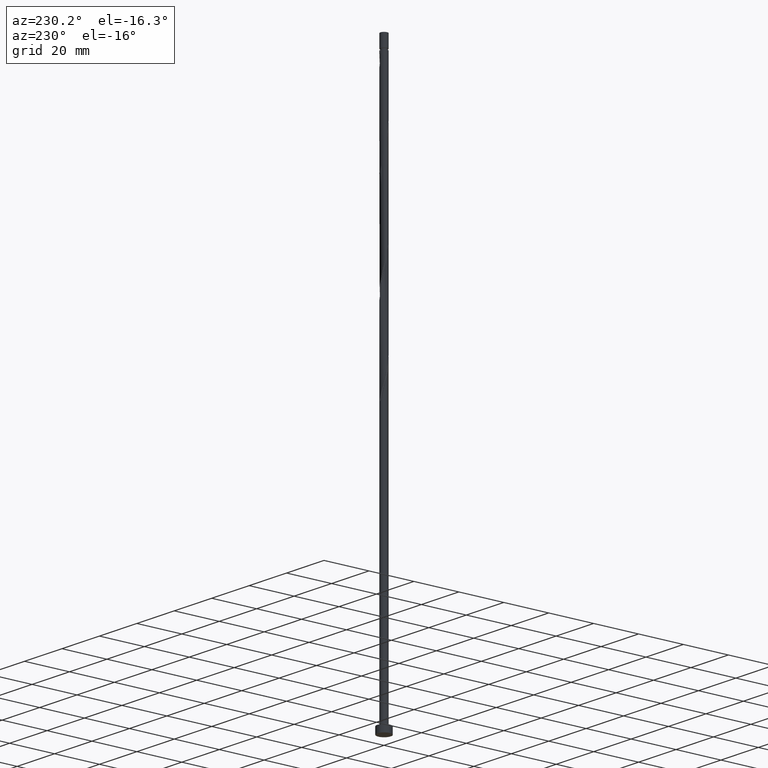
[diagram: clean part render]
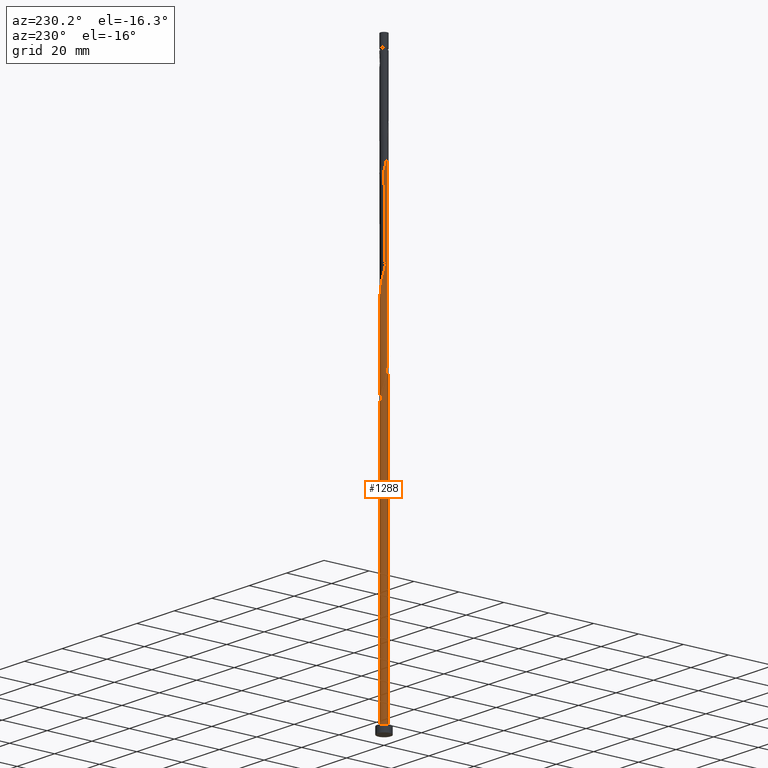
[diagram: same view with one face highlighted and labeled with its STEP entity id]
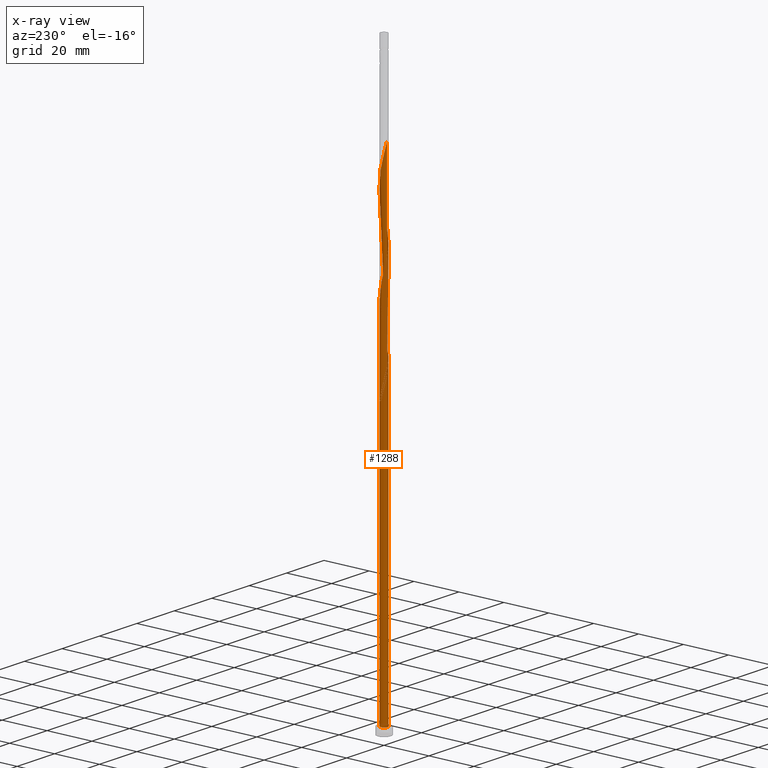
[diagram: x-ray of the same camera — body ghosted, the highlighted face saturated]
A machine part, auxiliary view. The second image highlights one B-rep face of the part: STEP entity #1288.
The next image is the same camera in x-ray: the body ghosted, the highlighted face saturated — about 0% of this face is hidden behind the body in this view.
In plain terms, the highlighted cylindrical surface (bore or boss wall) has radius 1.6 mm, axis along (-0, -0, -1).
Its self-contained STEP definition (entity closure, byte-faithful):
#8 = CARTESIAN_POINT ( 'NONE',  ( 1.594945909006418638, 0.1270730000578370045, 190.8876527196082975 ) ) ;
#9 = CIRCLE ( 'NONE', #662, 1.600000000000000089 ) ;
#16 = CARTESIAN_POINT ( 'NONE',  ( -0.8014535150113202278, -1.384800441679597371, 176.4645757965313635 ) ) ;
#41 = CARTESIAN_POINT ( 'NONE',  ( -1.471308233388665565, 0.6286907684726513734, 208.5158578478134359 ) ) ;
#56 = CARTESIAN_POINT ( 'NONE',  ( 0.6333082990155209924, 1.482114516932723891, 198.0991911811467503 ) ) ;
#58 = CARTESIAN_POINT ( 'NONE',  ( 0.3183959798741202718, -1.568000000000002281, 139.6056014375570840 ) ) ;
#68 = CARTESIAN_POINT ( 'NONE',  ( -1.394971353447189033, 0.8073399321019437691, 124.3812424631980491 ) ) ;
#85 = CIRCLE ( 'NONE', #294, 1.600000000000000089 ) ;
#89 =( BOUNDED_CURVE ( )  B_SPLINE_CURVE ( 2, ( #1074, #1307, #1718, #1061, #1331, #407, #1044, #939, #414, #1474, #963, #1325, #1109, #1163, #1692, #1034, #58, #1186, #504, #626, #1039, #255, #1448, #366, #1599, #1073, #792, #1330, #915, #1582, #378, #104, #262, #1337, #665, #1082, #130, #533, #1573, #644, #1060, #398, #1196, #764, #926, #1438, #1202, #1313, #1219, #946, #231, #248, #635, #524, #1708, #906, #774, #1210, #1590, #1050, #1470, #1698, #16, #1347, #783, #802, #494, #1565, #357, #239, #1322, #116, #1431, #1717, #389, #935, #1460, #513, #124, #653, #8, #1124, #307, #1093, #300, #1259, #273, #974, #281, #56, #712, #575, #1508, #1491, #585, #1252, #1379, #1134, #544, #683, #693, #1234, #41, #835, #702, #959, #817 ),
 .UNSPECIFIED., .F., .T. ) 
 B_SPLINE_CURVE_WITH_KNOTS ( ( 3, 2, 2, 2, 2, 2, 2, 2, 2, 2, 2, 2, 2, 2, 2, 2, 2, 2, 2, 2, 2, 2, 2, 2, 2, 2, 2, 2, 2, 2, 2, 2, 2, 2, 2, 2, 2, 2, 2, 2, 2, 2, 2, 2, 2, 2, 2, 2, 2, 2, 2, 2, 2, 3 ),
 ( 0.05452716259738341759, 0.05769230769230770939, 0.06730769230769229061, 0.07692307692307687184, 0.08653846153846156408, 0.09615384615384614531, 0.1057692307692307265, 0.1153846153846154188, 0.1250000000000000000, 0.1346153846153845812, 0.1442307692307692735, 0.1538461538461538547, 0.1634615384615384359, 0.1730769230769231282, 0.1826923076923077094, 0.1923076923076922906, 0.2019230769230768718, 0.2115384615384615641, 0.2211538461538461453, 0.2307692307692307265, 0.2403846153846154188, 0.2500000000000000000, 0.2596153846153845812, 0.2692307692307692735, 0.2788461538461538547, 0.2884615384615384359, 0.2980769230769231282, 0.3076923076923077094, 0.3173076923076922906, 0.3269230769230768718, 0.3365384615384615641, 0.3461538461538461453, 0.3557692307692307265, 0.3653846153846154188, 0.3750000000000000000, 0.3846153846153845812, 0.3942307692307692735, 0.4038461538461538547, 0.4134615384615384359, 0.4230769230769231282, 0.4326923076923077094, 0.4423076923076922906, 0.4519230769230768718, 0.4615384615384615641, 0.4711538461538461453, 0.4807692307692307265, 0.4903846153846154188, 0.5000000000000000000, 0.5096153846153845812, 0.5192307692307691624, 0.5288461538461538547, 0.5384615384615384359, 0.5480769230769231282, 0.5545271625973835494 ),
 .UNSPECIFIED. ) 
 CURVE ( )  GEOMETRIC_REPRESENTATION_ITEM ( )  RATIONAL_B_SPLINE_CURVE ( ( 0.9061636035683144907, 0.9069090390691032511, 0.9090909090909597978, 0.9024626128164631167, 0.9090909090909597978, 0.9024626128164631167, 0.9090909090909597978, 0.9024626128164631167, 0.9090909090909597978, 0.9024626128164631167, 0.9090909090909597978, 0.9024626128164631167, 0.9090909090909597978, 0.9024626128164631167, 0.9090909090909597978, 0.9024626128164631167, 0.9090909090909597978, 0.9024626128164631167, 0.9090909090909597978, 0.9024626128164631167, 0.9090909090909597978, 0.9024626128164631167, 0.9090909090909597978, 0.9024626128164631167, 0.9090909090909597978, 0.9024626128164631167, 0.9090909090909597978, 0.9024626128164631167, 0.9090909090909597978, 0.9024626128164631167, 0.9090909090909597978, 0.9024626128164631167, 0.9090909090909597978, 0.9024626128164631167, 0.9090909090909597978, 0.9024626128164631167, 0.9090909090909597978, 0.9024626128164631167, 0.9090909090909597978, 0.9024626128164631167, 0.9090909090909597978, 0.9024626128164631167, 0.9090909090909597978, 0.9024626128164631167, 0.9090909090909597978, 0.9024626128164631167, 0.9090909090909597978, 0.9024626128164631167, 0.9090909090909597978, 0.9024626128164631167, 0.9090909090909597978, 0.9024626128164631167, 0.9090909090909597978, 0.9024626128164631167, 0.9090909090909597978, 0.9024626128164631167, 0.9090909090909597978, 0.9024626128164631167, 0.9090909090909597978, 0.9024626128164631167, 0.9090909090909597978, 0.9024626128164631167, 0.9090909090909597978, 0.9024626128164631167, 0.9090909090909597978, 0.9024626128164631167, 0.9090909090909597978, 0.9024626128164631167, 0.9090909090909597978, 0.9024626128164631167, 0.9090909090909597978, 0.9024626128164631167, 0.9090909090909597978, 0.9024626128164631167, 0.9090909090909597978, 0.9024626128164631167, 0.9090909090909597978, 0.9024626128164631167, 0.9090909090909597978, 0.9024626128164631167, 0.9090909090909597978, 0.9024626128164631167, 0.9090909090909597978, 0.9024626128164631167, 0.9090909090909597978, 0.9024626128164631167, 0.9090909090909597978, 0.9024626128164631167, 0.9090909090909597978, 0.9024626128164631167, 0.9090909090909597978, 0.9024626128164631167, 0.9090909090909597978, 0.9024626128164631167, 0.9090909090909597978, 0.9024626128164631167, 0.9090909090909597978, 0.9024626128164631167, 0.9090909090909597978, 0.9024626128164631167, 0.9090909090909597978, 0.9024626128164631167, 0.9090909090909597978, 0.9024626128164631167, 0.9090909090909597978, 0.9046444828383195524, 0.9061636035683147128 ) ) 
 REPRESENTATION_ITEM ( '' )  );
#104 = CARTESIAN_POINT ( 'NONE',  ( 1.456861787004775088, 0.6894175632154343480, 151.6248322067878291 ) ) ;
#116 = CARTESIAN_POINT ( 'NONE',  ( 0.8599962163594109255, -1.363139519914286835, 183.6761142580698731 ) ) ;
#124 = CARTESIAN_POINT ( 'NONE',  ( 1.579010239008792116, -0.2583150500946562733, 189.2850886170441811 ) ) ;
#130 = CARTESIAN_POINT ( 'NONE',  ( 0.8014535150113204498, 1.384800441679597371, 155.6312424631981060 ) ) ;
#135 = CARTESIAN_POINT ( 'NONE',  ( -0.6333082990155192160, 1.482114516932720782, 122.7786783606339043 ) ) ;
#139 = ORIENTED_EDGE ( 'NONE', *, *, #1045, .T. ) ;
#143 = CARTESIAN_POINT ( 'NONE',  ( -1.594945909006415086, 0.1270730000578381147, 129.9902168221723855 ) ) ;
#154 = CARTESIAN_POINT ( 'NONE',  ( -0.06610299024276355961, 1.598633915154112017, 120.3748322067877581 ) ) ;
#162 = EDGE_CURVE ( 'NONE', #1218, #976, #1705, .T. ) ;
#163 = CARTESIAN_POINT ( 'NONE',  ( -1.518189120165080785, 0.5050760293385311295, 128.3876527196082691 ) ) ;
#190 = CARTESIAN_POINT ( 'NONE',  ( -1.600000000000002975, -1.876970285927413828E-15, 127.8610128949984812 ) ) ;
#191 = CARTESIAN_POINT ( 'NONE',  ( 0.000000000000000000, 0.000000000000000000, 250.0000000000000000 ) ) ;
#196 = CARTESIAN_POINT ( 'NONE',  ( -1.161226929016445197, 1.117718597068014574, 122.7786783606339327 ) ) ;
#203 = CARTESIAN_POINT ( 'NONE',  ( -0.5087856495666251977, 1.529339728673691612, 119.5735501555057425 ) ) ;
#229 = EDGE_CURVE ( 'NONE', #1417, #522, #1119, .T. ) ;
#231 = CARTESIAN_POINT ( 'NONE',  ( -1.471308233388665565, 0.6286907684726513734, 166.8491911811467787 ) ) ;
#239 = CARTESIAN_POINT ( 'NONE',  ( 0.5087856495666247536, -1.529339728673691834, 182.0735501555057567 ) ) ;
#243 = CARTESIAN_POINT ( 'NONE',  ( 0.3183959798741204383, 1.567999999999999616, 118.7722681042236701 ) ) ;
#247 = VERTEX_POINT ( 'NONE', #1229 ) ;
#248 = CARTESIAN_POINT ( 'NONE',  ( -1.547645113330142097, 0.4500416048433588667, 167.6504732324288227 ) ) ;
#255 = CARTESIAN_POINT ( 'NONE',  ( 1.161226929016444753, -1.117718597068014796, 143.6120116939672755 ) ) ;
#262 = CARTESIAN_POINT ( 'NONE',  ( 1.353200698052673401, 0.8537258756707375440, 152.4261142580699016 ) ) ;
#273 = CARTESIAN_POINT ( 'NONE',  ( 1.109569170053845477, 1.152760277276255740, 195.6953450273005899 ) ) ;
#281 = CARTESIAN_POINT ( 'NONE',  ( 0.8014535150113204498, 1.384800441679597371, 197.2979091298647631 ) ) ;
#294 = AXIS2_PLACEMENT_3D ( 'NONE', #820, #561, #295 ) ;
#295 = DIRECTION ( 'NONE',  ( 1.000000000000000000, 0.000000000000000000, 0.000000000000000000 ) ) ;
#296 = CARTESIAN_POINT ( 'NONE',  ( -0.9695987310071165766, 1.287486366426468853, 124.3812424631980207 ) ) ;
#300 = CARTESIAN_POINT ( 'NONE',  ( 1.353200698052673401, 0.8537258756707375440, 194.0927809247365019 ) ) ;
#307 = CARTESIAN_POINT ( 'NONE',  ( 1.518189120165084338, 0.5050760293385304633, 192.4902168221724139 ) ) ;
#322 = VECTOR ( 'NONE', #687, 1000.000000000000000 ) ;
#333 = CARTESIAN_POINT ( 'NONE',  ( -0.3183959798741199942, 1.568000000000002503, 118.7722681042236701 ) ) ;
#357 = CARTESIAN_POINT ( 'NONE',  ( 0.3183959798741202718, -1.568000000000002281, 181.2722681042237411 ) ) ;
#366 = CARTESIAN_POINT ( 'NONE',  ( 1.394971353447189033, -0.8073399321019439911, 145.2145757965313919 ) ) ;
#378 = CARTESIAN_POINT ( 'NONE',  ( 1.518189120165084338, 0.5050760293385304633, 150.8235501555057283 ) ) ;
#389 = CARTESIAN_POINT ( 'NONE',  ( 1.278099141231817226, -0.9625292645849793383, 186.0799604119159767 ) ) ;
#398 = CARTESIAN_POINT ( 'NONE',  ( -0.1280063101816146798, 1.606660271326313394, 159.6376527196082975 ) ) ;
#407 = CARTESIAN_POINT ( 'NONE',  ( -1.456861787004774644, -0.6894175632154346811, 130.7914988734544579 ) ) ;
#413 = DIRECTION ( 'NONE',  ( 0.000000000000000000, -0.000000000000000000, -1.000000000000000000 ) ) ;
#414 = CARTESIAN_POINT ( 'NONE',  ( -1.109569170053845255, -1.152760277276255740, 133.1953450273006183 ) ) ;
#435 = CARTESIAN_POINT ( 'NONE',  ( -0.2602122906671426317, 1.590607558981913972, 121.1761142580698163 ) ) ;
#454 = DIRECTION ( 'NONE',  ( 0.000000000000000000, 0.000000000000000000, 1.000000000000000000 ) ) ;
#456 = CARTESIAN_POINT ( 'NONE',  ( -0.6843909329630181171, 1.446239624293988779, 120.3748322067878007 ) ) ;
#494 = CARTESIAN_POINT ( 'NONE',  ( -0.06610299024276460045, -1.598633915154114460, 179.6697040016595679 ) ) ;
#504 = CARTESIAN_POINT ( 'NONE',  ( 0.6843909329630177840, -1.446239624293989223, 141.2081655401211151 ) ) ;
#513 = CARTESIAN_POINT ( 'NONE',  ( 1.547645113330141653, -0.4500416048433598659, 188.4838065657621371 ) ) ;
#522 = VERTEX_POINT ( 'NONE', #1678 ) ;
#524 = CARTESIAN_POINT ( 'NONE',  ( -1.610375364687443023, 0.06658849534595262520, 169.2530373349929391 ) ) ;
#533 = CARTESIAN_POINT ( 'NONE',  ( 0.6333082990155209924, 1.482114516932723891, 156.4325245144800647 ) ) ;
#543 = ORIENTED_EDGE ( 'NONE', *, *, #1580, .F. ) ;
#544 = CARTESIAN_POINT ( 'NONE',  ( -1.010611572687928117, 1.240429058491150371, 205.3107296426852599 ) ) ;
#560 = CARTESIAN_POINT ( 'NONE',  ( -1.599999999999999867, -1.966705917127145592E-15, 130.5168566467822302 ) ) ;
#561 = DIRECTION ( 'NONE',  ( 0.000000000000000000, 0.000000000000000000, 1.000000000000000000 ) ) ;
#575 = CARTESIAN_POINT ( 'NONE',  ( 0.2602122906671442415, 1.590607558981916858, 199.7017552837108383 ) ) ;
#585 = CARTESIAN_POINT ( 'NONE',  ( -0.3183959798741200498, 1.568000000000002281, 202.1056014375570840 ) ) ;
#587 = DIRECTION ( 'NONE',  ( -1.000000000000000000, 0.000000000000000000, 0.000000000000000000 ) ) ;
#606 = EDGE_CURVE ( 'NONE', #1528, #1417, #740, .T. ) ;
#610 = CARTESIAN_POINT ( 'NONE',  ( 1.600000000000000089, 0.000000000000000000, 3.000000000000000000 ) ) ;
#626 = CARTESIAN_POINT ( 'NONE',  ( 0.8599962163594109255, -1.363139519914286835, 142.0094475914031591 ) ) ;
#635 = CARTESIAN_POINT ( 'NONE',  ( -1.579010239008792116, 0.2583150500946560513, 168.4517552837108667 ) ) ;
#644 = CARTESIAN_POINT ( 'NONE',  ( 0.2602122906671442415, 1.590607558981916858, 158.0350886170441242 ) ) ;
#651 = VERTEX_POINT ( 'NONE', #610 ) ;
#653 = CARTESIAN_POINT ( 'NONE',  ( 1.610375364687443023, -0.06658849534595252806, 190.0863706683262251 ) ) ;
#662 = AXIS2_PLACEMENT_3D ( 'NONE', #1614, #413, #587 ) ;
#665 = CARTESIAN_POINT ( 'NONE',  ( 1.109569170053845477, 1.152760277276255740, 154.0286783606339327 ) ) ;
#674 = EDGE_CURVE ( 'NONE', #522, #651, #1101, .T. ) ;
#682 = ORIENTED_EDGE ( 'NONE', *, *, #839, .T. ) ;
#683 = CARTESIAN_POINT ( 'NONE',  ( -1.161226929016445197, 1.117718597068014574, 206.1120116939672755 ) ) ;
#687 = DIRECTION ( 'NONE',  ( -0.000000000000000000, -0.000000000000000000, -1.000000000000000000 ) ) ;
#693 = CARTESIAN_POINT ( 'NONE',  ( -1.278099141231817226, 0.9625292645849790052, 206.9132937452493479 ) ) ;
#698 = CARTESIAN_POINT ( 'NONE',  ( -0.8014535150113178963, 1.384800441679595151, 123.5799604119159909 ) ) ;
#702 = CARTESIAN_POINT ( 'NONE',  ( -1.579010239008792116, 0.2583150500946560513, 210.1184219503775807 ) ) ;
#712 = CARTESIAN_POINT ( 'NONE',  ( 0.4467602948413332276, 1.536361037957320264, 198.9004732324288227 ) ) ;
#717 = CARTESIAN_POINT ( 'NONE',  ( -1.600000000000000089, 0.000000000000000000, 250.0000000000000000 ) ) ;
#720 = EDGE_LOOP ( 'NONE', ( #543, #1452, #1152, #1458, #139, #1340, #1209, #682, #1659 ) ) ;
#722 = CARTESIAN_POINT ( 'NONE',  ( -1.010611572687928117, 1.240429058491150371, 121.9773963093519171 ) ) ;
#729 = CARTESIAN_POINT ( 'NONE',  ( -1.600000000000003197, 0.1300103016592699667, 127.3213121576501692 ) ) ;
#740 =( BOUNDED_CURVE ( )  B_SPLINE_CURVE ( 2, ( #1137, #203, #456, #858, #722, #196, #1274, #68, #1007, #1529, #1399, #729, #1280 ),
 .UNSPECIFIED., .F., .T. ) 
 B_SPLINE_CURVE_WITH_KNOTS ( ( 3, 2, 2, 2, 2, 2, 3 ),
 ( 0.000000000000000000, 0.009615384615384581224, 0.01923076923076927347, 0.02884615384615385122, 0.03846153846153843592, 0.04807692307692312816, 0.05452716259738341759 ),
 .UNSPECIFIED. ) 
 CURVE ( )  GEOMETRIC_REPRESENTATION_ITEM ( )  RATIONAL_B_SPLINE_CURVE ( ( 0.9090909090909597978, 0.9024626128164631167, 0.9090909090909597978, 0.9024626128164631167, 0.9090909090909597978, 0.9024626128164631167, 0.9090909090909597978, 0.9024626128164631167, 0.9090909090909597978, 0.9024626128164631167, 0.9090909090909597978, 0.9046444828383196635, 0.9061636035683144907 ) ) 
 REPRESENTATION_ITEM ( '' )  );
#764 = CARTESIAN_POINT ( 'NONE',  ( -0.5087856495666251977, 1.529339728673691612, 161.2402168221724423 ) ) ;
#774 = CARTESIAN_POINT ( 'NONE',  ( -1.518189120165083894, -0.5050760293385313515, 171.6568834888391279 ) ) ;
#783 = CARTESIAN_POINT ( 'NONE',  ( -0.4467602948413323949, -1.536361037957320486, 178.0671398990954799 ) ) ;
#792 = CARTESIAN_POINT ( 'NONE',  ( 1.579010239008792116, -0.2583150500946562733, 147.6184219503775807 ) ) ;
#795 = CARTESIAN_POINT ( 'NONE',  ( -1.579516453325389813, 0.3207344954616279664, 129.1889347708903131 ) ) ;
#802 = CARTESIAN_POINT ( 'NONE',  ( -0.2602122906671440750, -1.590607558981916858, 178.8684219503775239 ) ) ;
#810 = CARTESIAN_POINT ( 'NONE',  ( -1.599999999999999645, 0.06363700853882892083, 130.2526857311492279 ) ) ;
#817 = CARTESIAN_POINT ( 'NONE',  ( -1.600000000000002753, -3.813764325987972337E-16, 211.1943462283318524 ) ) ;
#820 = CARTESIAN_POINT ( 'NONE',  ( 0.000000000000000000, 0.000000000000000000, 3.000000000000000000 ) ) ;
#835 = CARTESIAN_POINT ( 'NONE',  ( -1.547645113330142097, 0.4500416048433588667, 209.3171398990954515 ) ) ;
#839 = EDGE_CURVE ( 'NONE', #1528, #976, #9, .T. ) ;
#858 = CARTESIAN_POINT ( 'NONE',  ( -0.8599962163594112585, 1.363139519914286391, 121.1761142580698447 ) ) ;
#906 = CARTESIAN_POINT ( 'NONE',  ( -1.579516453325393144, -0.3207344954616282440, 170.8556014375570555 ) ) ;
#915 = CARTESIAN_POINT ( 'NONE',  ( 1.594945909006418638, 0.1270730000578370045, 149.2209860529416687 ) ) ;
#926 = CARTESIAN_POINT ( 'NONE',  ( -0.6843909329630181171, 1.446239624293988779, 162.0414988734544579 ) ) ;
#935 = CARTESIAN_POINT ( 'NONE',  ( 1.394971353447189033, -0.8073399321019439911, 186.8812424631980775 ) ) ;
#939 = CARTESIAN_POINT ( 'NONE',  ( -1.249539609100570381, -1.018034188126040407, 132.3940629760185459 ) ) ;
#946 = CARTESIAN_POINT ( 'NONE',  ( -1.394971353447189033, 0.8073399321019437691, 166.0479091298647347 ) ) ;
#952 = CARTESIAN_POINT ( 'NONE',  ( -1.599999999999999867, -1.966705917127145592E-15, 130.5168566467822302 ) ) ;
#959 = CARTESIAN_POINT ( 'NONE',  ( -1.600000000000003642, 0.1300103016592673577, 210.6546454909835688 ) ) ;
#963 = CARTESIAN_POINT ( 'NONE',  ( -0.8014535150113202278, -1.384800441679597371, 134.7979091298647347 ) ) ;
#974 = CARTESIAN_POINT ( 'NONE',  ( 0.9695987310071199072, 1.287486366426470852, 196.4966270785826623 ) ) ;
#976 = VERTEX_POINT ( 'NONE', #243 ) ;
#980 = CARTESIAN_POINT ( 'NONE',  ( 0.3183959798741204938, 1.567999999999999616, 118.7722681042236701 ) ) ;
#1007 = CARTESIAN_POINT ( 'NONE',  ( -1.471308233388665565, 0.6286907684726513734, 125.1825245144801215 ) ) ;
#1025 = DIRECTION ( 'NONE',  ( -0.000000000000000000, -0.000000000000000000, -1.000000000000000000 ) ) ;
#1034 = CARTESIAN_POINT ( 'NONE',  ( 0.1280063101816148463, -1.606660271326313394, 138.8043193862749547 ) ) ;
#1039 = CARTESIAN_POINT ( 'NONE',  ( 1.010611572687928117, -1.240429058491150371, 142.8107296426852031 ) ) ;
#1044 = CARTESIAN_POINT ( 'NONE',  ( -1.353200698052673401, -0.8537258756707375440, 131.5927809247365303 ) ) ;
#1045 = EDGE_CURVE ( 'NONE', #651, #522, #85, .T. ) ;
#1050 = CARTESIAN_POINT ( 'NONE',  ( -1.249539609100570381, -1.018034188126040407, 174.0607296426852031 ) ) ;
#1060 = CARTESIAN_POINT ( 'NONE',  ( 0.06610299024276551638, 1.598633915154114460, 158.8363706683262819 ) ) ;
#1061 = CARTESIAN_POINT ( 'NONE',  ( -1.579516453325393144, -0.3207344954616282440, 129.1889347708903699 ) ) ;
#1073 = CARTESIAN_POINT ( 'NONE',  ( 1.547645113330141653, -0.4500416048433598659, 146.8171398990954799 ) ) ;
#1074 = CARTESIAN_POINT ( 'NONE',  ( -1.600000000000002975, -1.876970285927413828E-15, 127.8610128949984954 ) ) ;
#1082 = CARTESIAN_POINT ( 'NONE',  ( 0.9695987310071199072, 1.287486366426470852, 154.8299604119159767 ) ) ;
#1093 = CARTESIAN_POINT ( 'NONE',  ( 1.456861787004775088, 0.6894175632154343480, 193.2914988734544295 ) ) ;
#1096 = CARTESIAN_POINT ( 'NONE',  ( -0.4467602948413308961, 1.536361037957318043, 121.9773963093518745 ) ) ;
#1101 = CIRCLE ( 'NONE', #1159, 1.600000000000000089 ) ;
#1109 = CARTESIAN_POINT ( 'NONE',  ( -0.4467602948413323949, -1.536361037957320486, 136.4004732324288511 ) ) ;
#1119 = LINE ( 'NONE', #1502, #322 ) ;
#1124 = CARTESIAN_POINT ( 'NONE',  ( 1.579516453325393144, 0.3207344954616280219, 191.6889347708903415 ) ) ;
#1134 = CARTESIAN_POINT ( 'NONE',  ( -0.8599962163594112585, 1.363139519914286391, 204.5094475914031023 ) ) ;
#1137 = CARTESIAN_POINT ( 'NONE',  ( -0.3183959798741199942, 1.568000000000002503, 118.7722681042236701 ) ) ;
#1148 = LINE ( 'NONE', #717, #1649 ) ;
#1150 = DIRECTION ( 'NONE',  ( 1.000000000000000000, 0.000000000000000000, 0.000000000000000000 ) ) ;
#1152 = ORIENTED_EDGE ( 'NONE', *, *, #229, .T. ) ;
#1159 = AXIS2_PLACEMENT_3D ( 'NONE', #1360, #454, #1150 ) ;
#1163 = CARTESIAN_POINT ( 'NONE',  ( -0.2602122906671440750, -1.590607558981916858, 137.2017552837108383 ) ) ;
#1169 = CYLINDRICAL_SURFACE ( 'NONE', #1585, 1.600000000000000089 ) ;
#1179 = FACE_OUTER_BOUND ( 'NONE', #720, .T. ) ;
#1186 = CARTESIAN_POINT ( 'NONE',  ( 0.5087856495666247536, -1.529339728673691834, 140.4068834888390995 ) ) ;
#1196 = CARTESIAN_POINT ( 'NONE',  ( -0.3183959798741200498, 1.568000000000002281, 160.4389347708903699 ) ) ;
#1202 = CARTESIAN_POINT ( 'NONE',  ( -1.010611572687928117, 1.240429058491150371, 163.6440629760186027 ) ) ;
#1203 = DIRECTION ( 'NONE',  ( -0.000000000000000000, -0.000000000000000000, -1.000000000000000000 ) ) ;
#1209 = ORIENTED_EDGE ( 'NONE', *, *, #606, .F. ) ;
#1210 = CARTESIAN_POINT ( 'NONE',  ( -1.456861787004774644, -0.6894175632154346811, 172.4581655401211435 ) ) ;
#1218 = VERTEX_POINT ( 'NONE', #560 ) ;
#1219 = CARTESIAN_POINT ( 'NONE',  ( -1.278099141231817226, 0.9625292645849790052, 165.2466270785826907 ) ) ;
#1229 = CARTESIAN_POINT ( 'NONE',  ( -1.600000000000002975, -3.813764325987972337E-16, 211.1943462283318524 ) ) ;
#1234 = CARTESIAN_POINT ( 'NONE',  ( -1.394971353447189033, 0.8073399321019437691, 207.7145757965313351 ) ) ;
#1248 = CARTESIAN_POINT ( 'NONE',  ( 0.1280063101816155680, 1.606660271326310063, 119.5735501555056999 ) ) ;
#1252 = CARTESIAN_POINT ( 'NONE',  ( -0.5087856495666251977, 1.529339728673691612, 202.9068834888390995 ) ) ;
#1255 = CARTESIAN_POINT ( 'NONE',  ( -1.353200698052670070, 0.8537258756707365448, 126.7850886170441811 ) ) ;
#1259 = CARTESIAN_POINT ( 'NONE',  ( 1.249539609100571269, 1.018034188126039519, 194.8940629760184891 ) ) ;
#1274 = CARTESIAN_POINT ( 'NONE',  ( -1.278099141231817226, 0.9625292645849790052, 123.5799604119160193 ) ) ;
#1280 = CARTESIAN_POINT ( 'NONE',  ( -1.600000000000002975, -1.876970285927413828E-15, 127.8610128949984954 ) ) ;
#1288 = ADVANCED_FACE ( 'NONE', ( #1179 ), #1169, .T. ) ;
#1306 = EDGE_CURVE ( 'NONE', #1417, #247, #89, .T. ) ;
#1307 = CARTESIAN_POINT ( 'NONE',  ( -1.600000000000003197, -0.06363700853883243191, 128.1251838106314551 ) ) ;
#1313 = CARTESIAN_POINT ( 'NONE',  ( -1.161226929016445197, 1.117718597068014574, 164.4453450273005615 ) ) ;
#1322 = CARTESIAN_POINT ( 'NONE',  ( 0.6843909329630177840, -1.446239624293989223, 182.8748322067878007 ) ) ;
#1325 = CARTESIAN_POINT ( 'NONE',  ( -0.6333082990155206593, -1.482114516932723891, 135.5991911811467787 ) ) ;
#1330 = CARTESIAN_POINT ( 'NONE',  ( 1.610375364687443023, -0.06658849534595252806, 148.4197040016595679 ) ) ;
#1331 = CARTESIAN_POINT ( 'NONE',  ( -1.518189120165083894, -0.5050760293385313515, 129.9902168221724139 ) ) ;
#1337 = CARTESIAN_POINT ( 'NONE',  ( 1.249539609100571269, 1.018034188126039519, 153.2273963093519455 ) ) ;
#1340 = ORIENTED_EDGE ( 'NONE', *, *, #229, .F. ) ;
#1342 = CARTESIAN_POINT ( 'NONE',  ( -1.109569170053842146, 1.152760277276253964, 125.1825245144800647 ) ) ;
#1347 = CARTESIAN_POINT ( 'NONE',  ( -0.6333082990155206593, -1.482114516932723891, 177.2658578478134075 ) ) ;
#1360 = CARTESIAN_POINT ( 'NONE',  ( 0.000000000000000000, 0.000000000000000000, 3.000000000000000000 ) ) ;
#1379 = CARTESIAN_POINT ( 'NONE',  ( -0.6843909329630181171, 1.446239624293988779, 203.7081655401211719 ) ) ;
#1399 = CARTESIAN_POINT ( 'NONE',  ( -1.579010239008792116, 0.2583150500946560513, 126.7850886170442095 ) ) ;
#1417 = VERTEX_POINT ( 'NONE', #190 ) ;
#1431 = CARTESIAN_POINT ( 'NONE',  ( 1.010611572687928117, -1.240429058491150371, 184.4773963093519455 ) ) ;
#1438 = CARTESIAN_POINT ( 'NONE',  ( -0.8599962163594112585, 1.363139519914286391, 162.8427809247365019 ) ) ;
#1448 = CARTESIAN_POINT ( 'NONE',  ( 1.278099141231817226, -0.9625292645849793383, 144.4132937452493195 ) ) ;
#1452 = ORIENTED_EDGE ( 'NONE', *, *, #1306, .F. ) ;
#1458 = ORIENTED_EDGE ( 'NONE', *, *, #674, .T. ) ;
#1460 = CARTESIAN_POINT ( 'NONE',  ( 1.471308233388665565, -0.6286907684726513734, 187.6825245144800931 ) ) ;
#1470 = CARTESIAN_POINT ( 'NONE',  ( -1.109569170053845255, -1.152760277276255740, 174.8620116939672755 ) ) ;
#1474 = CARTESIAN_POINT ( 'NONE',  ( -0.9695987310071191301, -1.287486366426471296, 133.9966270785826055 ) ) ;
#1491 = CARTESIAN_POINT ( 'NONE',  ( -0.1280063101816146798, 1.606660271326313394, 201.3043193862749831 ) ) ;
#1502 = CARTESIAN_POINT ( 'NONE',  ( -1.600000000000000089, 0.000000000000000000, 250.0000000000000000 ) ) ;
#1508 = CARTESIAN_POINT ( 'NONE',  ( 0.06610299024276551638, 1.598633915154114460, 200.5030373349929107 ) ) ;
#1528 = VERTEX_POINT ( 'NONE', #333 ) ;
#1529 = CARTESIAN_POINT ( 'NONE',  ( -1.547645113330142097, 0.4500416048433588667, 125.9838065657621797 ) ) ;
#1565 = CARTESIAN_POINT ( 'NONE',  ( 0.1280063101816148463, -1.606660271326313394, 180.4709860529416403 ) ) ;
#1573 = CARTESIAN_POINT ( 'NONE',  ( 0.4467602948413332276, 1.536361037957320264, 157.2338065657621371 ) ) ;
#1580 = EDGE_CURVE ( 'NONE', #247, #1218, #1148, .T. ) ;
#1582 = CARTESIAN_POINT ( 'NONE',  ( 1.579516453325393144, 0.3207344954616280219, 150.0222681042237127 ) ) ;
#1585 = AXIS2_PLACEMENT_3D ( 'NONE', #191, #1203, #1689 ) ;
#1590 = CARTESIAN_POINT ( 'NONE',  ( -1.353200698052673401, -0.8537258756707375440, 173.2594475914031307 ) ) ;
#1594 = CARTESIAN_POINT ( 'NONE',  ( -1.249539609100567938, 1.018034188126039075, 125.9838065657620803 ) ) ;
#1599 = CARTESIAN_POINT ( 'NONE',  ( 1.471308233388665565, -0.6286907684726513734, 146.0158578478134359 ) ) ;
#1614 = CARTESIAN_POINT ( 'NONE',  ( 0.000000000000000000, 0.000000000000000000, 118.7722681042236985 ) ) ;
#1635 = CARTESIAN_POINT ( 'NONE',  ( -1.456861787004771758, 0.6894175632154339040, 127.5863706683261825 ) ) ;
#1649 = VECTOR ( 'NONE', #1025, 1000.000000000000000 ) ;
#1659 = ORIENTED_EDGE ( 'NONE', *, *, #162, .F. ) ;
#1678 = CARTESIAN_POINT ( 'NONE',  ( -1.600000000000000089, 0.000000000000000000, 3.000000000000000000 ) ) ;
#1689 = DIRECTION ( 'NONE',  ( -1.000000000000000000, 0.000000000000000000, 0.000000000000000000 ) ) ;
#1692 = CARTESIAN_POINT ( 'NONE',  ( -0.06610299024276460045, -1.598633915154114460, 138.0030373349929107 ) ) ;
#1698 = CARTESIAN_POINT ( 'NONE',  ( -0.9695987310071191301, -1.287486366426471296, 175.6632937452492911 ) ) ;
#1705 =( BOUNDED_CURVE ( )  B_SPLINE_CURVE ( 2, ( #952, #810, #143, #795, #163, #1635, #1255, #1594, #1342, #296, #698, #135, #1096, #435, #154, #1248, #980 ),
 .UNSPECIFIED., .F., .T. ) 
 B_SPLINE_CURVE_WITH_KNOTS ( ( 3, 2, 2, 2, 2, 2, 2, 2, 3 ),
 ( 0.9295271625973832164, 0.9326923076923077094, 0.9423076923076922906, 0.9519230769230768718, 0.9615384615384615641, 0.9711538461538461453, 0.9807692307692307265, 0.9903846153846154188, 1.000000000000000000 ),
 .UNSPECIFIED. ) 
 CURVE ( )  GEOMETRIC_REPRESENTATION_ITEM ( )  RATIONAL_B_SPLINE_CURVE ( ( 0.9061636035683077184, 0.9069090390690963677, 0.9090909090909530255, 0.9024626128164564554, 0.9090909090909530255, 0.9024626128164564554, 0.9090909090909530255, 0.9024626128164564554, 0.9090909090909530255, 0.9024626128164564554, 0.9090909090909530255, 0.9024626128164564554, 0.9090909090909530255, 0.9024626128164564554, 0.9090909090909530255, 0.9024626128164564554, 0.9090909090909530255 ) ) 
 REPRESENTATION_ITEM ( '' )  );
#1708 = CARTESIAN_POINT ( 'NONE',  ( -1.594945909006418638, -0.1270730000578375873, 170.0543193862749547 ) ) ;
#1717 = CARTESIAN_POINT ( 'NONE',  ( 1.161226929016444753, -1.117718597068014796, 185.2786783606339327 ) ) ;
#1718 = CARTESIAN_POINT ( 'NONE',  ( -1.594945909006418638, -0.1270730000578375873, 128.3876527196082975 ) ) ;